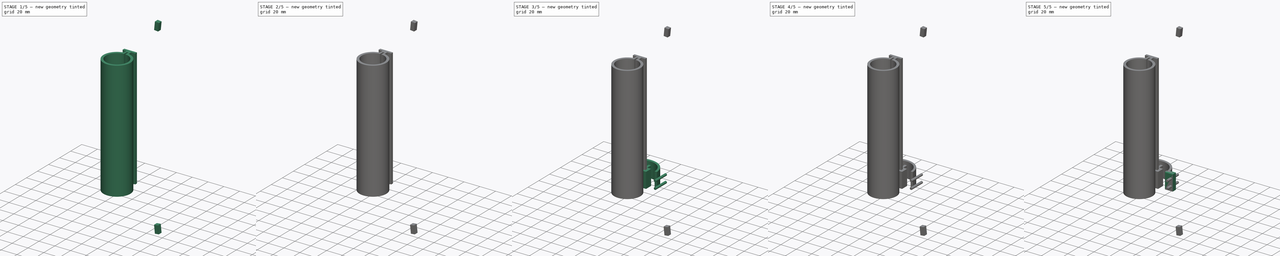
[diagram: build sequence overview — one tinted view per stage of 5, left to right]
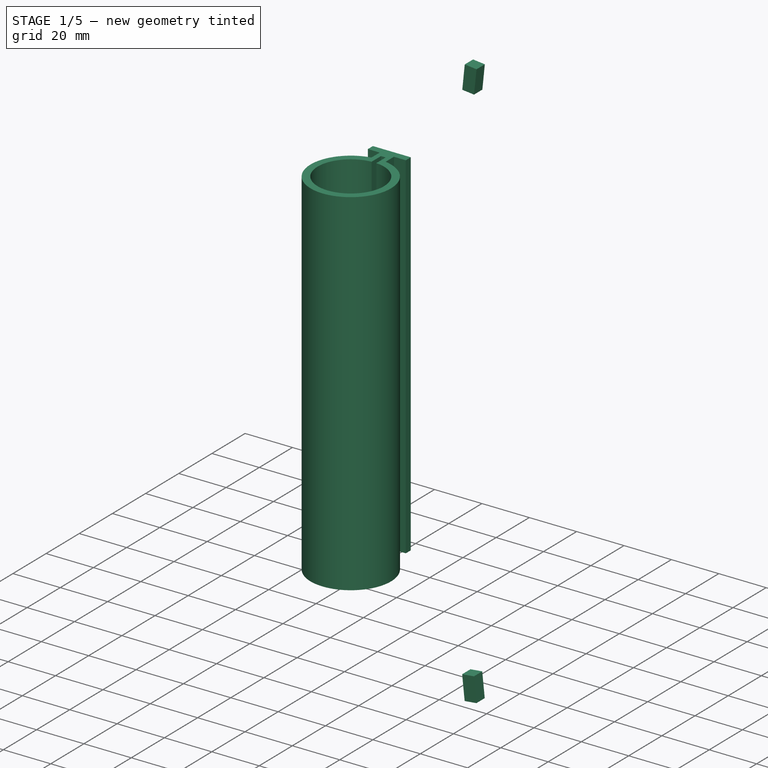
[diagram: stage 1 of 5 — iso view after this stage's code; geometry added in this stage tinted green]
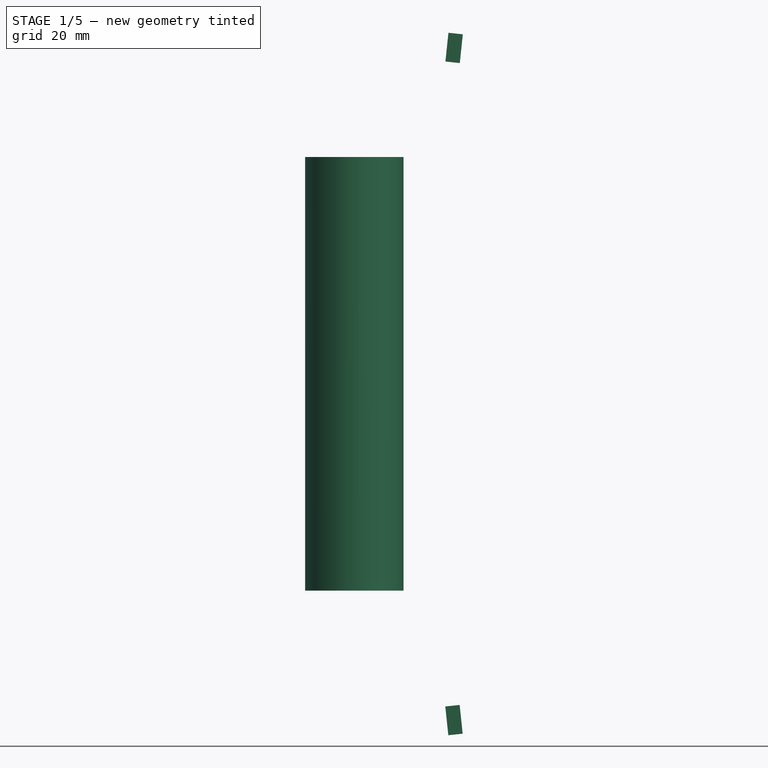
[diagram: stage 1 of 5 — front view after this stage's code; geometry added in this stage tinted green]
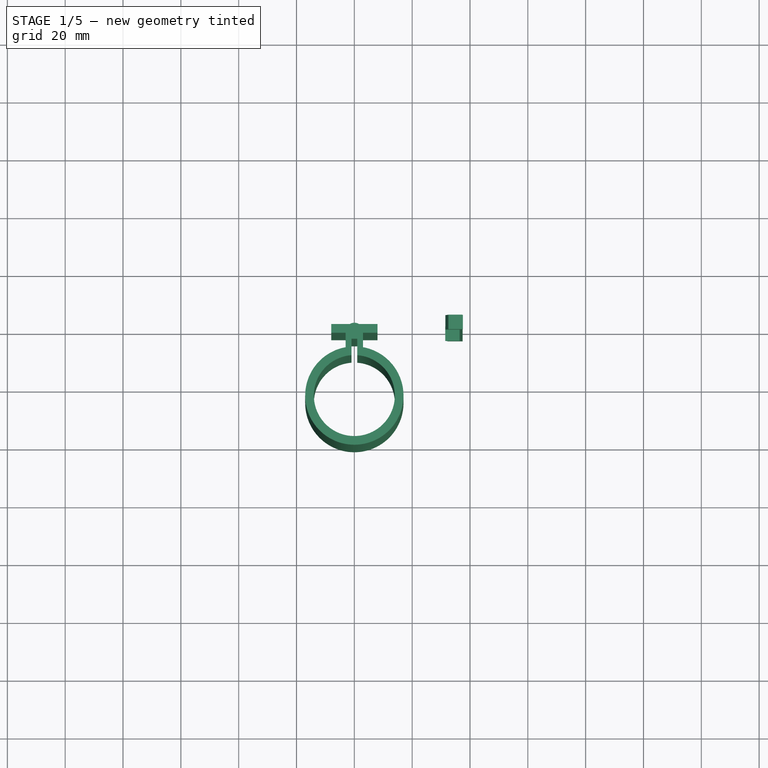
[diagram: stage 1 of 5 — top view after this stage's code; geometry added in this stage tinted green]
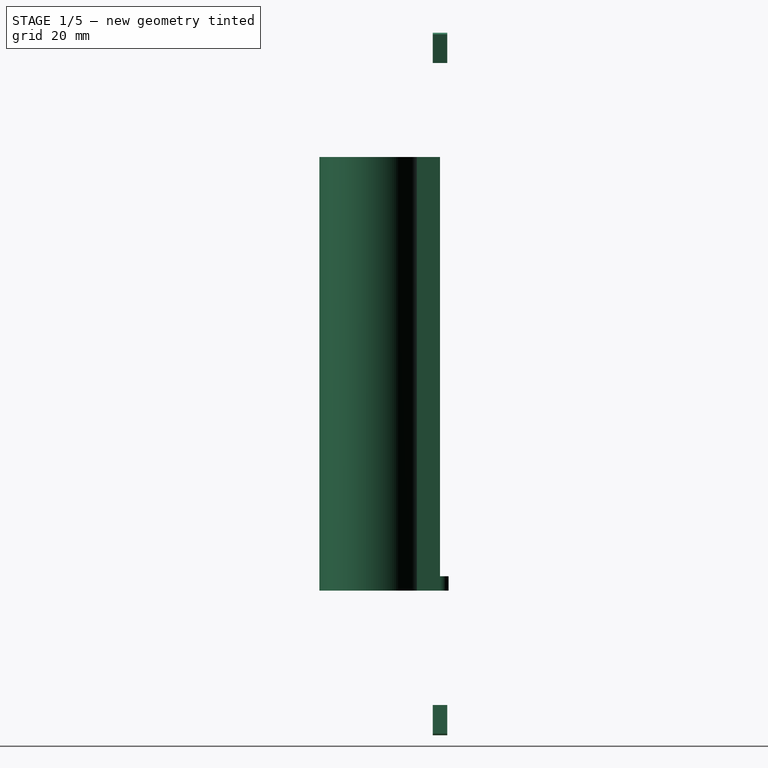
[diagram: stage 1 of 5 — right view after this stage's code; geometry added in this stage tinted green]
FCSTD DOCUMENT  (FreeCAD 0.17R13522 (Git))
Label: KuaiChaiDianYuan-jwei-1.0
License: All rights reserved
LicenseURL: http://en.wikipedia.org/wiki/All_rights_reserved
objects: Sketcher::SketchObject×24, PartDesign::Pad×14, PartDesign::Body×14, PartDesign::Pocket×10, Part::Box×6, Part::Cylinder×6, PartDesign::Fillet×2, PartDesign::LinearPattern×1
note: 101 computed .brp shape members not serialized (recipe doc carries the construction recipe); baked Part::Feature solids carry a one-line shape summary decoded from their .brp

FEATURE [Sketcher::SketchObject] Sketch012
  MapMode = 5
  Support = -> [XY_Plane002]
  sketch-geometry (8):
    g0: LineSegment StartX=-3 StartY=-3 StartZ=0 EndX=-8 EndY=-3 EndZ=0
    g1: LineSegment StartX=-8 StartY=-3 StartZ=0 EndX=-8 EndY=0 EndZ=0
    g2: LineSegment StartX=-8 StartY=0 StartZ=0 EndX=8 EndY=0 EndZ=0
    g3: LineSegment StartX=8 StartY=0 StartZ=0 EndX=8 EndY=-3 EndZ=0
    g4: LineSegment StartX=8 StartY=-3 StartZ=0 EndX=3 EndY=-3 EndZ=0
    g5: LineSegment StartX=3 StartY=-3 StartZ=0 EndX=3 EndY=-8 EndZ=0
    g6: LineSegment StartX=-3 StartY=-3 StartZ=0 EndX=-3 EndY=-8 EndZ=0
    g7: ArcOfCircle CenterX=0 CenterY=-24.7332 CenterZ=0 NormalX=0 NormalY=0 NormalZ=1 AngleXU=0 Radius=17 StartAngle=1.7482 EndAngle=7.67658
  constraints (25):
    c: Horizontal(g0)
    c: Coincident(g0,g1)
    c: Vertical(g1)
    c: Coincident(g1,g2)
    c: Horizontal(g2)
    c: Coincident(g2,g3)
    c: Coincident(g3,g4)
    c: Coincident(g4,g5)
    c: Vertical(g5)
    c: Coincident(g0,g6)
    c: Vertical(g6)
    c: Coincident(g7,g6)
    c: Coincident(g7,g5)
    c: Equal(g1,g3)
    c: Equal(g0,g4)
    c: Equal(g6,g5)
    c: Horizontal(g4)
    c: Vertical(g3)
    c: DistanceX(g2,g2) = 16
    c: DistanceY(g1,g1) = 3
    c: DistanceX(g4,g4) = 5
    c: DistanceY(g5,g5) = 5
    c: Radius(g7) = 17
    c: PointOnObject(g-1,g2)
    c: DistanceX(g1,g-1) = 8
FEATURE [PartDesign::Pad] Pad005
  Length = 150
  Length2 = 100
  Profile = -> Sketch012
  Type = 0
FEATURE [Sketcher::SketchObject] Sketch013
  ExternalGeometry = -> [Pad005]
  MapMode = 5
  Placement = pos=(0,0,150) rot=(0,0,1;0rad)
  Support = -> [Pad005]
  sketch-geometry (1):
    g0: Circle CenterX=0 CenterY=-24.7332 CenterZ=0 NormalX=0 NormalY=0 NormalZ=1 AngleXU=0 Radius=14
  constraints (2):
    c: Coincident(g0,g-3)
    c: Radius(g0) = 14
FEATURE [PartDesign::Pocket] Pocket005
  BaseFeature = -> Pad005
  Length = 140
  Length2 = 100
  Profile = -> Sketch013
  Type = 1
FEATURE [PartDesign::Body] Body011  label="固定孔5_2"
  Group = -> [Sketch024,Pad012]
  Origin = -> Origin011
  Placement = pos=(57.5,19.3,-37) rot=(0,0,1;0rad)
  Tip = -> Pad012
FEATURE [Sketcher::SketchObject] Sketch025
  MapMode = 5
  Support = -> [XY_Plane012]
  sketch-geometry (2):
    g0: Circle CenterX=0 CenterY=0 CenterZ=0 NormalX=0 NormalY=0 NormalZ=1 AngleXU=0 Radius=3
    g1: Circle CenterX=0 CenterY=0 CenterZ=0 NormalX=0 NormalY=0 NormalZ=1 AngleXU=0 Radius=1.5
  constraints (4):
    c: Radius(g0) = 3
    c: Coincident(g0,g1)
    c: Radius(g1) = 1.5
    c: Coincident(g0,g-1)
FEATURE [PartDesign::Pad] Pad013
  Length = 5
  Length2 = 100
  Profile = -> Sketch025
  Type = 0
FEATURE [PartDesign::Body] Body012  label="固定孔5_3"
  Group = -> [Sketch025,Pad013]
  Origin = -> Origin012
  Placement = pos=(57.5,-19.3,-37) rot=(0,0,1;0rad)
  Tip = -> Pad013
FEATURE [Sketcher::SketchObject] Sketch026
  MapMode = 5
  Support = -> [XY_Plane013]
  sketch-geometry (2):
    g0: Circle CenterX=0 CenterY=0 CenterZ=0 NormalX=0 NormalY=0 NormalZ=1 AngleXU=0 Radius=3
    g1: Circle CenterX=0 CenterY=0 CenterZ=0 NormalX=0 NormalY=0 NormalZ=1 AngleXU=0 Radius=1.5
  constraints (4):
    c: Radius(g0) = 3
    c: Coincident(g0,g1)
    c: Radius(g1) = 1.5
    c: Coincident(g0,g-1)
FEATURE [PartDesign::Pad] Pad014
  Length = 5
  Length2 = 100
  Profile = -> Sketch026
  Type = 0
FEATURE [PartDesign::Body] Body013  label="固定孔6_2"
  Group = -> [Sketch026,Pad014]
  Origin = -> Origin013
  Placement = pos=(57.5,19.3,180) rot=(0,0,1;0rad)
  Tip = -> Pad014
FEATURE [Sketcher::SketchObject] Sketch027
  MapMode = 5
  Support = -> [XY_Plane014]
  sketch-geometry (2):
    g0: Circle CenterX=0 CenterY=0 CenterZ=0 NormalX=0 NormalY=0 NormalZ=1 AngleXU=0 Radius=3
    g1: Circle CenterX=0 CenterY=0 CenterZ=0 NormalX=0 NormalY=0 NormalZ=1 AngleXU=0 Radius=1.5
  constraints (4):
    c: Radius(g0) = 3
    c: Coincident(g0,g1)
    c: Radius(g1) = 1.5
    c: Coincident(g0,g-1)
FEATURE [PartDesign::Pad] Pad015
  Length = 5
  Length2 = 100
  Profile = -> Sketch027
  Type = 0
FEATURE [PartDesign::Body] Body014  label="固定孔6_3"
  Group = -> [Sketch027,Pad015]
  Origin = -> Origin014
  Placement = pos=(57.5,-19.3,180) rot=(0,0,1;0rad)
  Tip = -> Pad015
FEATURE [Sketcher::SketchObject] Sketch028
  MapMode = 5
  Placement = pos=(0,0,0) rot=(1,0,0;3.14159rad)
  Support = -> [Pocket005]
  sketch-geometry (4):
    g0: LineSegment StartX=-1 StartY=15.1036 StartZ=0 EndX=1 EndY=15.1036 EndZ=0
    g1: LineSegment StartX=1 StartY=15.1036 StartZ=0 EndX=1 EndY=5.10358 EndZ=0
    g2: LineSegment StartX=1 StartY=5.10358 StartZ=0 EndX=-1 EndY=5.10358 EndZ=0
    g3: LineSegment StartX=-1 StartY=5.10358 StartZ=0 EndX=-1 EndY=15.1036 EndZ=0
  constraints (11):
    c: Coincident(g0,g1)
    c: Coincident(g1,g2)
    c: Coincident(g2,g3)
    c: Coincident(g3,g0)
    c: Horizontal(g0)
    c: Horizontal(g2)
    c: Vertical(g1)
    c: Vertical(g3)
    c: DistanceX(g0,g0) = 2
    c: DistanceY(g3,g3) = 10
    c: DistanceX(g-1,g0) = 1
FEATURE [PartDesign::Pocket] Pocket010
  BaseFeature = -> Pocket005
  Length = 5
  Length2 = 100
  Profile = -> Sketch028
  Type = 1
FEATURE [PartDesign::Body] Body002  label="电池仓3_1"
  Group = -> [Sketch012,Pad005,Sketch013,Pocket005,Sketch028,Pocket010]
  Origin = -> Origin002
  Placement = pos=(32.5,0,0) rot=(0,0,1;1.5708rad)
  Tip = -> Pocket010
FEATURE [Part::Box] Box005  label="立方体5_4"
  AttacherType = Attacher::AttachEngine3D
  Height = 10
  Length = 5
  Placement = pos=(32.5,-2.5,-50) rot=(0,-1,0;0.10472rad)
  Width = 5
FEATURE [Part::Box] Box006  label="立方体6_4"
  AttacherType = Attacher::AttachEngine3D
  Height = 10
  Length = 5
  Placement = pos=(31.5,-2.5,183) rot=(0,1,0;0.10472rad)
  Width = 5
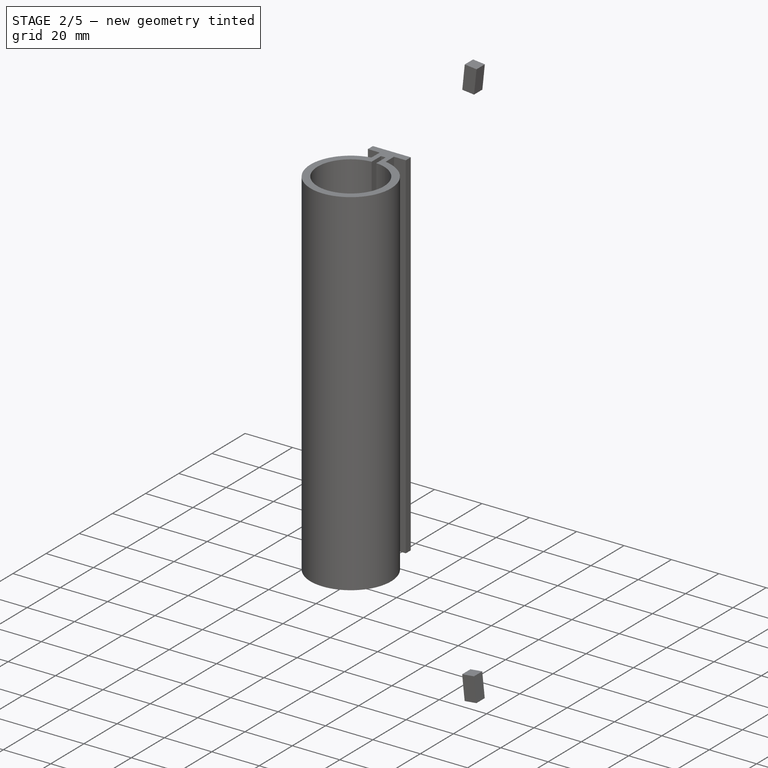
[diagram: stage 2 of 5 — iso view after this stage's code; geometry added in this stage tinted green]
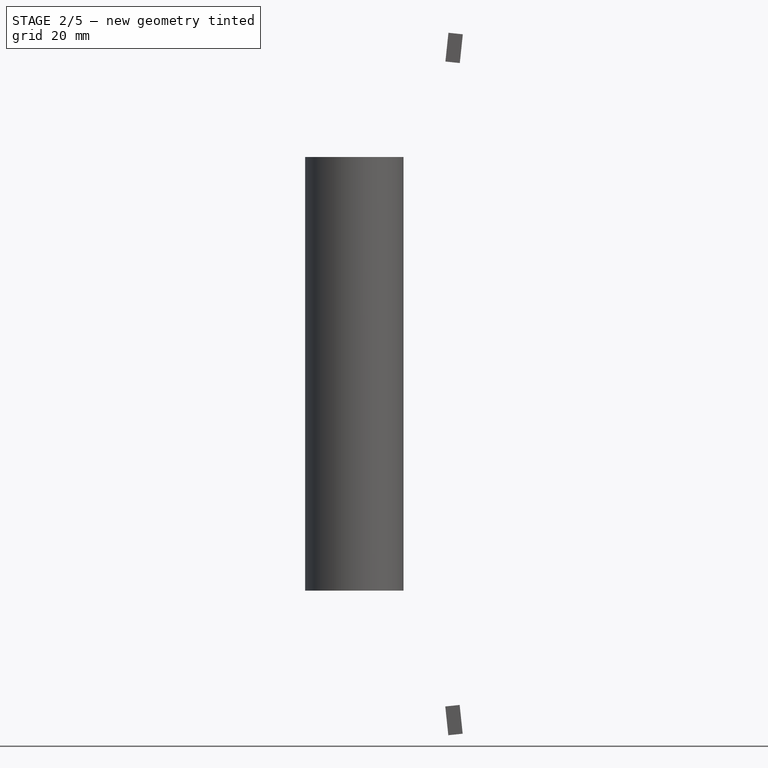
[diagram: stage 2 of 5 — front view after this stage's code; geometry added in this stage tinted green]
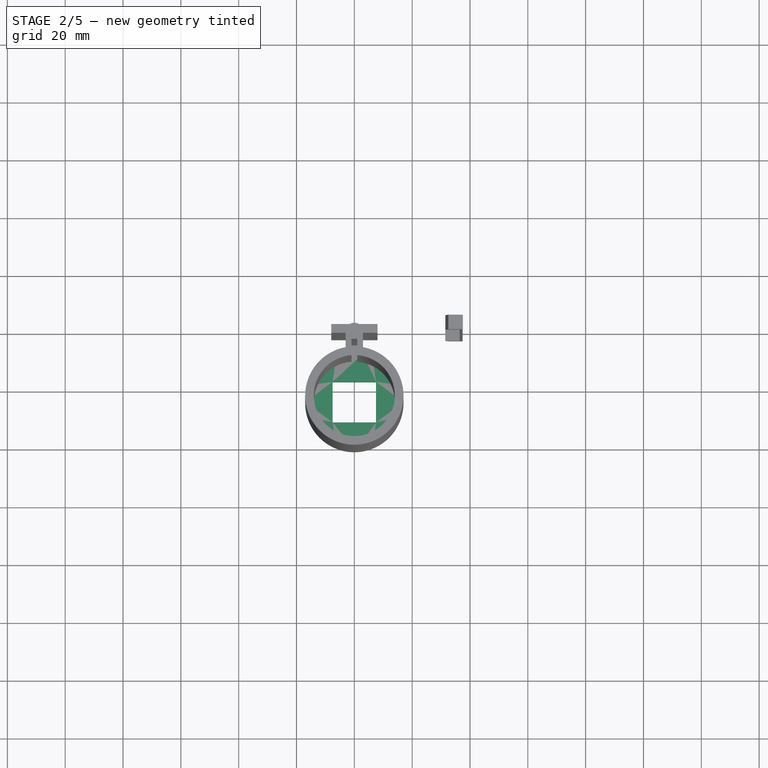
[diagram: stage 2 of 5 — top view after this stage's code; geometry added in this stage tinted green]
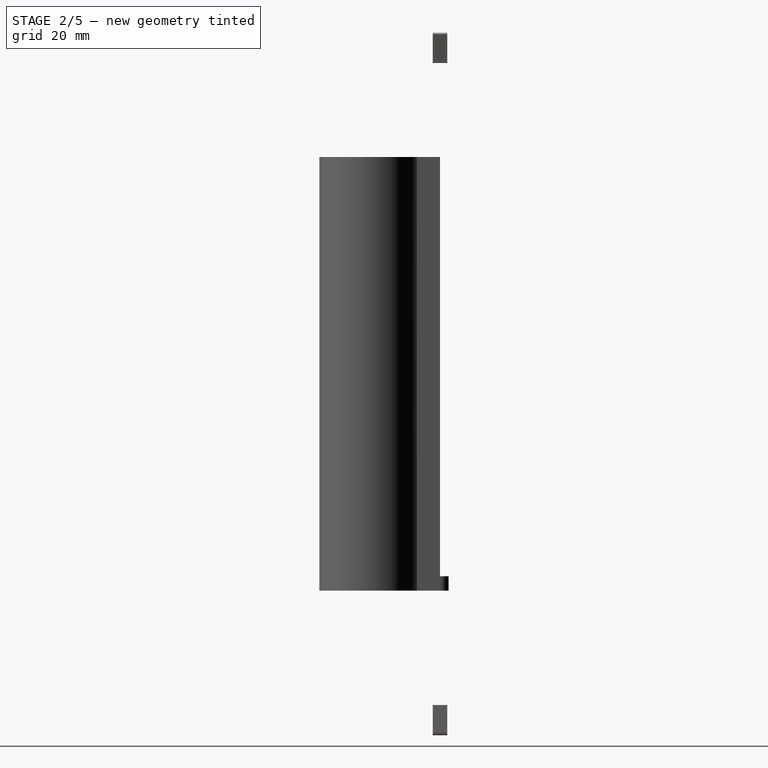
[diagram: stage 2 of 5 — right view after this stage's code; geometry added in this stage tinted green]
FEATURE [PartDesign::Body] Body005  label="USB5_1"
  Group = -> [Sketch014,Pad006,Sketch015,Pocket006,Sketch016,Pocket007]
  Origin = -> Origin005
  Placement = pos=(32.5,0,-60) rot=(0,0,1;1.5708rad)
  Tip = -> Pocket007
FEATURE [Sketcher::SketchObject] Sketch017
  MapMode = 5
  Support = -> [XY_Plane006]
  sketch-geometry (8):
    g0: LineSegment StartX=-3 StartY=-3 StartZ=0 EndX=-8 EndY=-3 EndZ=0
    g1: LineSegment StartX=-8 StartY=-3 StartZ=0 EndX=-8 EndY=0 EndZ=0
    g2: LineSegment StartX=-8 StartY=0 StartZ=0 EndX=8 EndY=0 EndZ=0
    g3: LineSegment StartX=8 StartY=0 StartZ=0 EndX=8 EndY=-3 EndZ=0
    g4: LineSegment StartX=8 StartY=-3 StartZ=0 EndX=3 EndY=-3 EndZ=0
    g5: LineSegment StartX=3 StartY=-3 StartZ=0 EndX=3 EndY=-8 EndZ=0
    g6: LineSegment StartX=-3 StartY=-3 StartZ=0 EndX=-3 EndY=-8 EndZ=0
    g7: ArcOfCircle CenterX=0 CenterY=-24.7332 CenterZ=0 NormalX=0 NormalY=0 NormalZ=1 AngleXU=0 Radius=17 StartAngle=1.7482 EndAngle=7.67658
  constraints (25):
    c: Horizontal(g0)
    c: Coincident(g0,g1)
    c: Vertical(g1)
    c: Coincident(g1,g2)
    c: Horizontal(g2)
    c: Coincident(g2,g3)
    c: Coincident(g3,g4)
    c: Coincident(g4,g5)
    c: Vertical(g5)
    c: Coincident(g0,g6)
    c: Vertical(g6)
    c: Coincident(g7,g6)
    c: Coincident(g7,g5)
    c: Equal(g1,g3)
    c: Equal(g0,g4)
    c: Equal(g6,g5)
    c: Horizontal(g4)
    c: Vertical(g3)
    c: DistanceX(g2,g2) = 16
    c: DistanceY(g1,g1) = 3
    c: DistanceX(g4,g4) = 5
    c: DistanceY(g5,g5) = 5
    c: Radius(g7) = 17
    c: PointOnObject(g-1,g2)
    c: DistanceX(g1,g-1) = 8
FEATURE [PartDesign::Pad] Pad007
  Length = 20
  Length2 = 100
  Profile = -> Sketch017
  Type = 0
FEATURE [Sketcher::SketchObject] Sketch018
  ExternalGeometry = -> [Pad007]
  MapMode = 5
  Placement = pos=(0,0,20) rot=(0,0,1;0rad)
  Support = -> [Pad007]
  sketch-geometry (4):
    g0: LineSegment StartX=-7.5 StartY=-17.7332 StartZ=0 EndX=7.5 EndY=-17.7332 EndZ=0
    g1: LineSegment StartX=7.5 StartY=-17.7332 StartZ=0 EndX=7.5 EndY=-31.7332 EndZ=0
    g2: LineSegment StartX=7.5 StartY=-31.7332 StartZ=0 EndX=-7.5 EndY=-31.7332 EndZ=0
    g3: LineSegment StartX=-7.5 StartY=-31.7332 StartZ=0 EndX=-7.5 EndY=-17.7332 EndZ=0
  constraints (12):
    c: Coincident(g0,g1)
    c: Coincident(g1,g2)
    c: Coincident(g2,g3)
    c: Coincident(g3,g0)
    c: Horizontal(g0)
    c: Horizontal(g2)
    c: Vertical(g1)
    c: Vertical(g3)
    c: DistanceX(g0,g0) = 15
    c: DistanceY(g3,g3) = 14
    c: DistanceX(g0,g-1) = 7.5
    c: DistanceY(g-3,g0) = 7
FEATURE [PartDesign::Pocket] Pocket008
  BaseFeature = -> Pad007
  Length = 5
  Length2 = 100
  Profile = -> Sketch018
  Type = 1
FEATURE [Sketcher::SketchObject] Sketch019
  AttachmentOffset = pos=(0,0,-10) rot=(0,0,1;0rad)
  ExternalGeometry = -> [Pocket008]
  MapMode = 5
  Placement = pos=(0,0,10) rot=(0,0,1;0rad)
  Support = -> [Pocket008]
  sketch-geometry (4):
    g0: LineSegment StartX=-10 StartY=-14.7332 StartZ=0 EndX=10 EndY=-14.7332 EndZ=0
    g1: LineSegment StartX=10 StartY=-14.7332 StartZ=0 EndX=10 EndY=-34.7332 EndZ=0
    g2: LineSegment StartX=10 StartY=-34.7332 StartZ=0 EndX=-10 EndY=-34.7332 EndZ=0
    g3: LineSegment StartX=-10 StartY=-34.7332 StartZ=0 EndX=-10 EndY=-14.7332 EndZ=0
  constraints (12):
    c: Coincident(g0,g1)
    c: Coincident(g1,g2)
    c: Coincident(g2,g3)
    c: Coincident(g3,g0)
    c: Horizontal(g0)
    c: Horizontal(g2)
    c: Vertical(g1)
    c: Vertical(g3)
    c: DistanceX(g0,g0) = 20
    c: DistanceY(g3,g3) = 20
    c: DistanceX(g0,g-1) = 10
    c: DistanceY(g-3,g0) = 10
FEATURE [PartDesign::Pocket] Pocket009
  BaseFeature = -> Pocket008
  Length = 5
  Length2 = 100
  Profile = -> Sketch019
  Type = 1
FEATURE [PartDesign::Body] Body006  label="USB6_2"
  Group = -> [Sketch017,Pad007,Sketch018,Pocket008,Sketch019,Pocket009]
  Origin = -> Origin006
  Placement = pos=(32.5,0,180) rot=(0,0,1;1.5708rad)
  Tip = -> Pocket009
FEATURE [Sketcher::SketchObject] Sketch020
  MapMode = 5
  Support = -> [XY_Plane007]
  sketch-geometry (2):
    g0: Circle CenterX=0 CenterY=0 CenterZ=0 NormalX=0 NormalY=0 NormalZ=1 AngleXU=0 Radius=3
    g1: Circle CenterX=0 CenterY=0 CenterZ=0 NormalX=0 NormalY=0 NormalZ=1 AngleXU=0 Radius=1.5
  constraints (4):
    c: Radius(g0) = 3
    c: Coincident(g0,g1)
    c: Radius(g1) = 1.5
    c: Coincident(g0,g-1)
FEATURE [PartDesign::Pad] Pad008
  Length = 5
  Length2 = 100
  Profile = -> Sketch020
  Type = 0
FEATURE [PartDesign::Body] Body007  label="固定孔3_2"
  Group = -> [Sketch020,Pad008]
  Origin = -> Origin007
  Placement = pos=(57.5,19.3,0) rot=(0,0,1;0rad)
  Tip = -> Pad008
FEATURE [Sketcher::SketchObject] Sketch021
  MapMode = 5
  Support = -> [XY_Plane008]
  sketch-geometry (2):
    g0: Circle CenterX=0 CenterY=0 CenterZ=0 NormalX=0 NormalY=0 NormalZ=1 AngleXU=0 Radius=3
    g1: Circle CenterX=0 CenterY=0 CenterZ=0 NormalX=0 NormalY=0 NormalZ=1 AngleXU=0 Radius=1.5
  constraints (4):
    c: Radius(g0) = 3
    c: Coincident(g0,g1)
    c: Radius(g1) = 1.5
    c: Coincident(g0,g-1)
FEATURE [PartDesign::Pad] Pad009
  Length = 5
  Length2 = 100
  Profile = -> Sketch021
  Type = 0
FEATURE [PartDesign::Body] Body008  label="固定孔3_3"
  Group = -> [Sketch021,Pad009]
  Origin = -> Origin008
  Placement = pos=(57.5,-19.3,0) rot=(0,0,1;0rad)
  Tip = -> Pad009
FEATURE [Sketcher::SketchObject] Sketch022
  MapMode = 5
  Support = -> [XY_Plane009]
  sketch-geometry (2):
    g0: Circle CenterX=0 CenterY=0 CenterZ=0 NormalX=0 NormalY=0 NormalZ=1 AngleXU=0 Radius=3
    g1: Circle CenterX=0 CenterY=0 CenterZ=0 NormalX=0 NormalY=0 NormalZ=1 AngleXU=0 Radius=1.5
  constraints (4):
    c: Radius(g0) = 3
    c: Coincident(g0,g1)
    c: Radius(g1) = 1.5
    c: Coincident(g0,g-1)
FEATURE [PartDesign::Pad] Pad010
  Length = 5
  Length2 = 100
  Profile = -> Sketch022
  Type = 0
FEATURE [PartDesign::Body] Body009  label="固定孔3_4"
  Group = -> [Sketch022,Pad010]
  Origin = -> Origin009
  Placement = pos=(57.5,19.3,145) rot=(0,0,1;0rad)
  Tip = -> Pad010
FEATURE [Sketcher::SketchObject] Sketch023
  MapMode = 5
  Support = -> [XY_Plane010]
  sketch-geometry (2):
    g0: Circle CenterX=0 CenterY=0 CenterZ=0 NormalX=0 NormalY=0 NormalZ=1 AngleXU=0 Radius=3
    g1: Circle CenterX=0 CenterY=0 CenterZ=0 NormalX=0 NormalY=0 NormalZ=1 AngleXU=0 Radius=1.5
  constraints (4):
    c: Radius(g0) = 3
    c: Coincident(g0,g1)
    c: Radius(g1) = 1.5
    c: Coincident(g0,g-1)
FEATURE [PartDesign::Pad] Pad011
  Length = 5
  Length2 = 100
  Profile = -> Sketch023
  Type = 0
FEATURE [PartDesign::Body] Body010  label="固定孔3_5"
  Group = -> [Sketch023,Pad011]
  Origin = -> Origin010
  Placement = pos=(57.5,-19.3,145) rot=(0,0,1;0rad)
  Tip = -> Pad011
FEATURE [Sketcher::SketchObject] Sketch024
  MapMode = 5
  Support = -> [XY_Plane011]
  sketch-geometry (2):
    g0: Circle CenterX=0 CenterY=0 CenterZ=0 NormalX=0 NormalY=0 NormalZ=1 AngleXU=0 Radius=3
    g1: Circle CenterX=0 CenterY=0 CenterZ=0 NormalX=0 NormalY=0 NormalZ=1 AngleXU=0 Radius=1.5
  constraints (4):
    c: Radius(g0) = 3
    c: Coincident(g0,g1)
    c: Radius(g1) = 1.5
    c: Coincident(g0,g-1)
FEATURE [PartDesign::Pad] Pad012
  Length = 5
  Length2 = 100
  Profile = -> Sketch024
  Type = 0
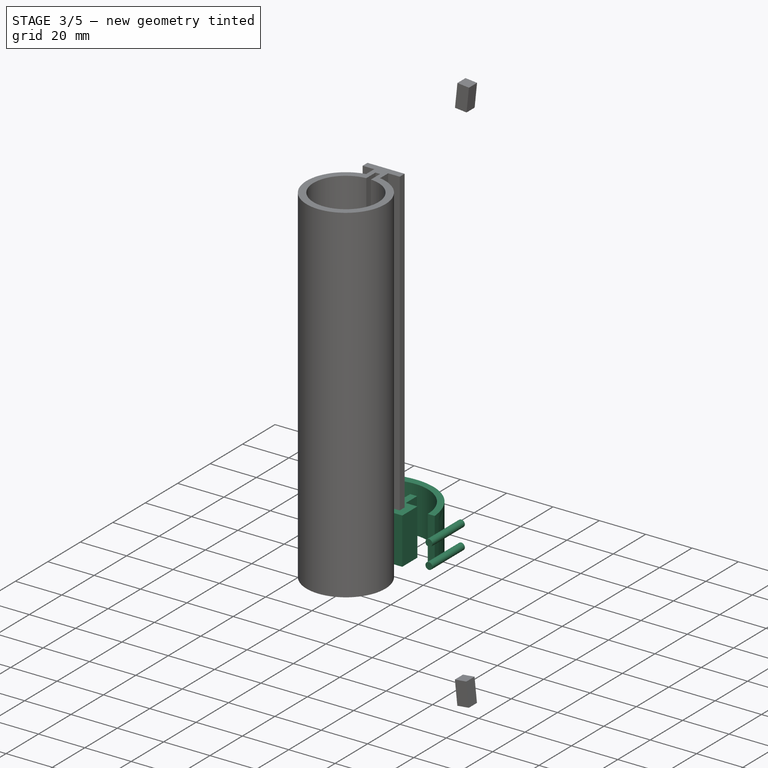
[diagram: stage 3 of 5 — iso view after this stage's code; geometry added in this stage tinted green]
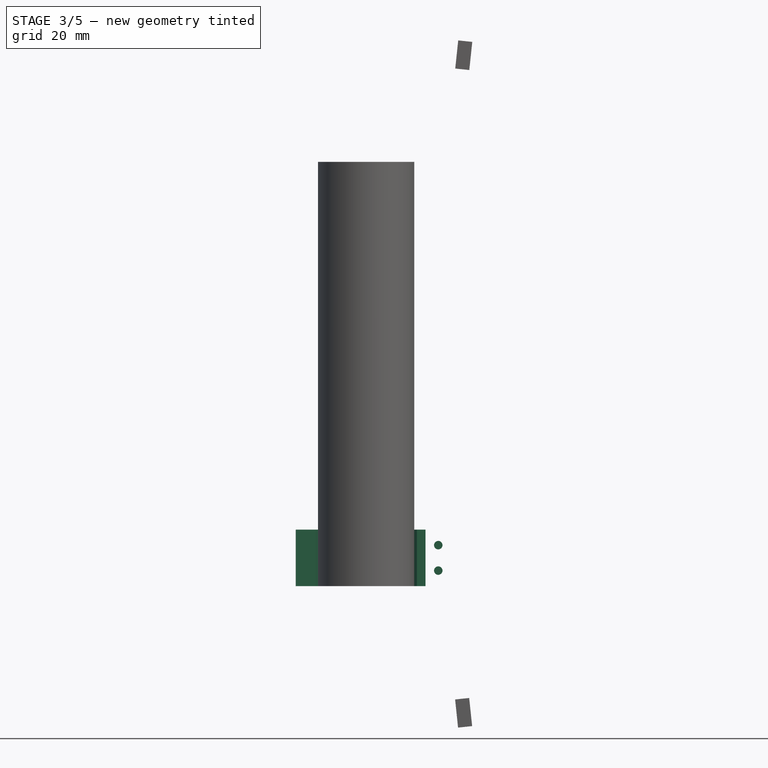
[diagram: stage 3 of 5 — front view after this stage's code; geometry added in this stage tinted green]
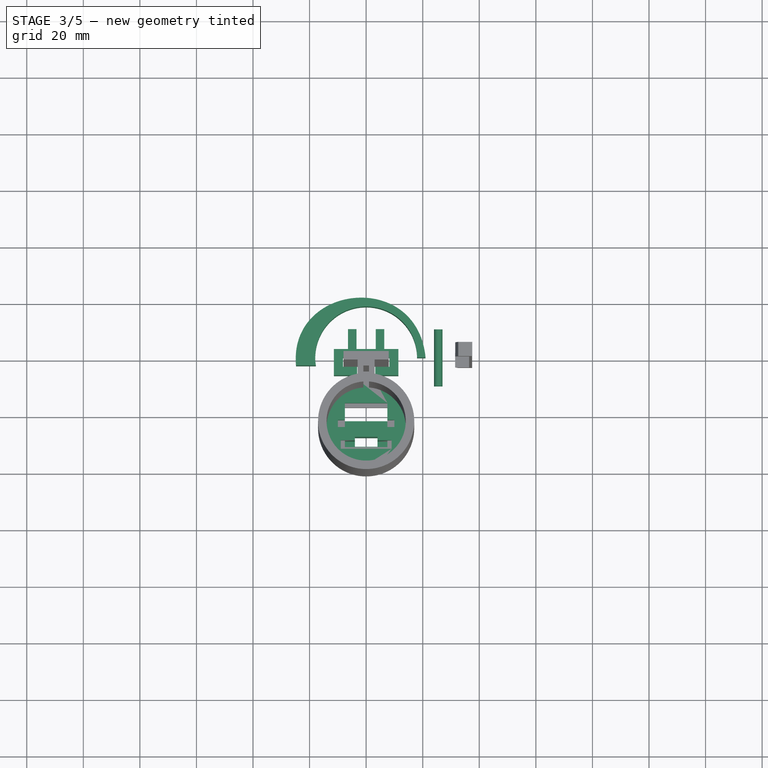
[diagram: stage 3 of 5 — top view after this stage's code; geometry added in this stage tinted green]
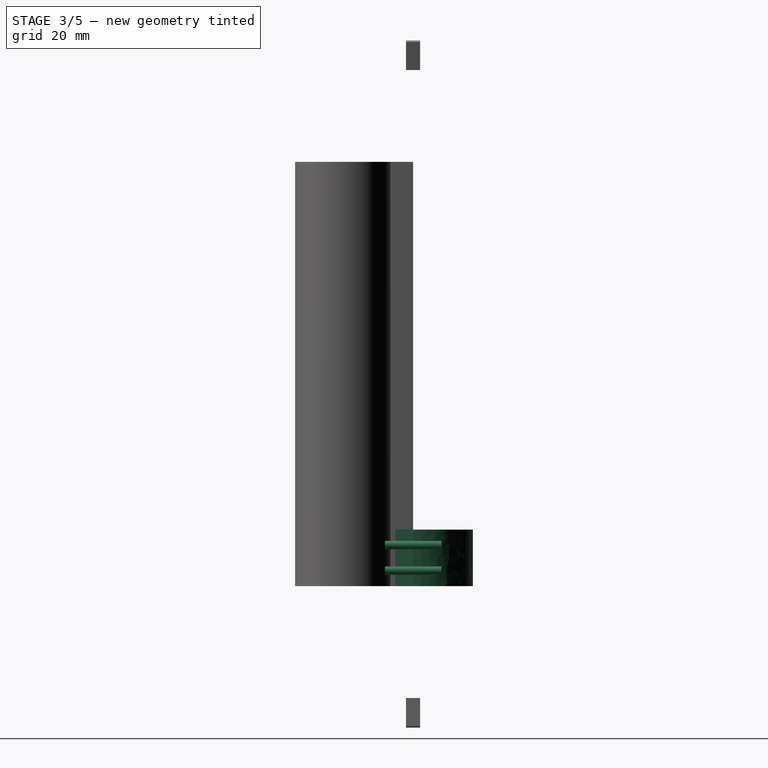
[diagram: stage 3 of 5 — right view after this stage's code; geometry added in this stage tinted green]
FEATURE [Sketcher::SketchObject] Sketch
  MapMode = 5
  Support = -> [XY_Plane]
  sketch-geometry (10):
    g0: LineSegment StartX=18 StartY=0 StartZ=0 EndX=21 EndY=0 EndZ=0
    g1: ArcOfCircle CenterX=0 CenterY=0 CenterZ=0 NormalX=0 NormalY=0 NormalZ=1 AngleXU=0 Radius=18 StartAngle=0 EndAngle=3.29778
    g2-g5: Circle [constr] x4 (B-spline internal-alignment scaffolding for g6; pole/knot coordinates omitted)
    g6: BSplineCurve PolesCount=4 KnotsCount=2 Degree=3 IsPeriodic=0
    g7: GeomPoint [constr] X=21 Y=0 Z=0
    g8: GeomPoint [constr] X=-24.7809 Y=-2.8 Z=0
    g9: LineSegment StartX=-24.7809 StartY=-2.8 StartZ=0 EndX=-17.7809 EndY=-2.8 EndZ=0
  constraints (18):
    c: Horizontal(g0)
    c: Coincident(g1,g-1)
    c: Coincident(g1,g0)
    c: Radius(g1) = 18
    c: Radius(g2) = 3
    c: Equal(g2,g3)
    c: Equal(g2,g4)
    c: Equal(g2,g5)
    c: InternalAlignment(g2-g5 -> g6) x4
    c: InternalAlignment(g7,g6)
    c: InternalAlignment(g8,g6)
    c: PointOnObject(g0,g-1)
    c: Coincident(g0,g2)
    c: DistanceY(g1,g-1) = 2.8
    c: DistanceX(g5,g1) = 7
    c: Coincident(g9,g1)
    c: Horizontal(g9)
    c: Coincident(g5,g9)
FEATURE [PartDesign::Pad] Pad
  Length = 20
  Length2 = 100
  Profile = -> Sketch
  Type = 0
FEATURE [PartDesign::Body] Body  label="车梁卡扣1_1"
  Group = -> [Sketch,Pad,Sketch005,Pocket,Sketch008,Pocket002,Fillet002]
  Origin = -> Origin
  Tip = -> Fillet002
FEATURE [Sketcher::SketchObject] Sketch011
  MapMode = 5
  Support = -> [XY_Plane004]
  sketch-geometry (20):
    g0: LineSegment StartX=-6.4 StartY=3 StartZ=0 EndX=-6.4 EndY=10 EndZ=0
    g1: LineSegment StartX=-6.4 StartY=10 StartZ=0 EndX=-3.4 EndY=10 EndZ=0
    g2: LineSegment StartX=-3.4 StartY=10 StartZ=0 EndX=-3.4 EndY=3 EndZ=0
    g3: LineSegment StartX=6.4 StartY=10 StartZ=0 EndX=3.4 EndY=10 EndZ=0
    g4: LineSegment StartX=3.4 StartY=10 StartZ=0 EndX=3.4 EndY=3 EndZ=0
    g5: LineSegment StartX=11.4 StartY=3 StartZ=0 EndX=11.4 EndY=-6.3 EndZ=0
    g6: LineSegment StartX=11.4 StartY=-6.3 StartZ=0 EndX=3.2 EndY=-6.3 EndZ=0
    g7: LineSegment StartX=3.2 StartY=-6.3 StartZ=0 EndX=3.2 EndY=-3.3 EndZ=0
    g8: LineSegment StartX=3.2 StartY=-3.3 StartZ=0 EndX=8.2 EndY=-3.3 EndZ=0
    g9: LineSegment StartX=8.2 StartY=-3.3 StartZ=0 EndX=8.2 EndY=0 EndZ=0
    g10: LineSegment StartX=8.2 StartY=0 StartZ=0 EndX=-8.2 EndY=0 EndZ=0
    g11: LineSegment StartX=-8.2 StartY=0 StartZ=0 EndX=-8.2 EndY=-3.3 EndZ=0
    g12: LineSegment StartX=-8.2 StartY=-3.3 StartZ=0 EndX=-3.2 EndY=-3.3 EndZ=0
    g13: LineSegment StartX=-3.2 StartY=-3.3 StartZ=0 EndX=-3.2 EndY=-6.3 EndZ=0
    g14: LineSegment StartX=-3.2 StartY=-6.3 StartZ=0 EndX=-11.4 EndY=-6.3 EndZ=0
    g15: LineSegment StartX=-11.4 StartY=-6.3 StartZ=0 EndX=-11.4 EndY=3 EndZ=0
    g16: LineSegment StartX=-11.4 StartY=3 StartZ=0 EndX=-6.4 EndY=3 EndZ=0
    g17: LineSegment StartX=-3.4 StartY=3 StartZ=0 EndX=3.4 EndY=3 EndZ=0
    g18: LineSegment StartX=11.4 StartY=3 StartZ=0 EndX=6.4 EndY=3 EndZ=0
    g19: LineSegment StartX=6.4 StartY=10 StartZ=0 EndX=6.4 EndY=3 EndZ=0
  constraints (60):
    c: Vertical(g0)
    c: Coincident(g0,g1)
    c: Coincident(g1,g2)
    c: Vertical(g2)
    c: Coincident(g3,g4)
    c: Coincident(g5,g6)
    c: Horizontal(g6)
    c: Coincident(g6,g7)
    c: Vertical(g7)
    c: Coincident(g7,g8)
    c: Horizontal(g8)
    c: Coincident(g8,g9)
    c: Coincident(g9,g10)
    c: Horizontal(g10)
    c: Coincident(g10,g11)
    c: Vertical(g11)
    c: Coincident(g11,g12)
    c: Horizontal(g12)
    c: Coincident(g12,g13)
    c: Coincident(g13,g14)
    c: Coincident(g14,g15)
    c: Vertical(g15)
    c: Coincident(g15,g16)
    c: Coincident(g16,g0)
    c: Vertical(g5)
    c: Vertical(g9)
    c: Vertical(g4)
    c: Vertical(g13)
    c: Horizontal(g14)
    c: Horizontal(g1)
    c: Horizontal(g3)
    c: Horizontal(g16)
    c: DistanceY(g0,g0) = 7
    c: DistanceX(g1,g1) = 3
    c: DistanceX(g16,g16) = 5
    c: DistanceY(g13,g13) = 3
    c: DistanceY(g11,g11) = 3.3
    c: Coincident(g17,g2)
    c: Coincident(g17,g4)
    c: Horizontal(g17)
    c: Coincident(g18,g5)
    c: Horizontal(g18)
    c: Coincident(g19,g3)
    c: Coincident(g19,g18)
    c: Vertical(g19)
    c: DistanceX(g17,g17) = 6.8
    c: DistanceX(g8,g8) = 5
    c: PointOnObject(g-1,g10)
    c: DistanceX(g10,g10) = 16.4
    c: DistanceX(g2,g-1) = 3.4
    c: Equal(g9,g11)
    c: Equal(g6,g14)
    c: DistanceX(g10,g-1) = 8.2
    c: Equal(g7,g13)
    c: DistanceY(g-1,g15) = 3
    c: Equal(g0,g2)
    c: Equal(g2,g4)
    c: Equal(g4,g19)
    c: Equal(g3,g1)
    c: DistanceX(g12,g12) = 5
FEATURE [PartDesign::Pad] Pad004
  Length = 20
  Length2 = 100
  Profile = -> Sketch011
  Type = 0
FEATURE [PartDesign::Body] Body004  label="衔接4_1"
  Group = -> [Sketch011,Pad004]
  Origin = -> Origin004
  Placement = pos=(32,0,0) rot=(0,0,1;1.5708rad)
  Tip = -> Pad004
FEATURE [Part::Cylinder] Cylinder004  label="螺孔4_2"
  Angle = 360
  AttacherType = Attacher::AttachEngine3D
  Height = 20
  Placement = pos=(25.5,10,5.5) rot=(1,0,0;1.5708rad)
  Radius = 1.5
FEATURE [Part::Cylinder] Cylinder005  label="螺孔4_3"
  Angle = 360
  AttacherType = Attacher::AttachEngine3D
  Height = 20
  Placement = pos=(25.5,10,14.5) rot=(1,0,0;1.5708rad)
  Radius = 1.5
FEATURE [Sketcher::SketchObject] Sketch014
  MapMode = 5
  Support = -> [XY_Plane005]
  sketch-geometry (8):
    g0: LineSegment StartX=-3 StartY=-3 StartZ=0 EndX=-8 EndY=-3 EndZ=0
    g1: LineSegment StartX=-8 StartY=-3 StartZ=0 EndX=-8 EndY=0 EndZ=0
    g2: LineSegment StartX=-8 StartY=0 StartZ=0 EndX=8 EndY=0 EndZ=0
    g3: LineSegment StartX=8 StartY=0 StartZ=0 EndX=8 EndY=-3 EndZ=0
    g4: LineSegment StartX=8 StartY=-3 StartZ=0 EndX=3 EndY=-3 EndZ=0
    g5: LineSegment StartX=3 StartY=-3 StartZ=0 EndX=3 EndY=-8 EndZ=0
    g6: LineSegment StartX=-3 StartY=-3 StartZ=0 EndX=-3 EndY=-8 EndZ=0
    g7: ArcOfCircle CenterX=0 CenterY=-24.7332 CenterZ=0 NormalX=0 NormalY=0 NormalZ=1 AngleXU=0 Radius=17 StartAngle=1.7482 EndAngle=7.67658
  constraints (25):
    c: Horizontal(g0)
    c: Coincident(g0,g1)
    c: Vertical(g1)
    c: Coincident(g1,g2)
    c: Horizontal(g2)
    c: Coincident(g2,g3)
    c: Coincident(g3,g4)
    c: Coincident(g4,g5)
    c: Vertical(g5)
    c: Coincident(g0,g6)
    c: Vertical(g6)
    c: Coincident(g7,g6)
    c: Coincident(g7,g5)
    c: Equal(g1,g3)
    c: Equal(g0,g4)
    c: Equal(g6,g5)
    c: Horizontal(g4)
    c: Vertical(g3)
    c: DistanceX(g2,g2) = 16
    c: DistanceY(g1,g1) = 3
    c: DistanceX(g4,g4) = 5
    c: DistanceY(g5,g5) = 5
    c: Radius(g7) = 17
    c: PointOnObject(g-1,g2)
    c: DistanceX(g1,g-1) = 8
FEATURE [PartDesign::Pad] Pad006
  Length = 28
  Length2 = 100
  Profile = -> Sketch014
  Type = 0
FEATURE [Sketcher::SketchObject] Sketch015
  ExternalGeometry = -> [Pad006]
  MapMode = 5
  Placement = pos=(0,0,0) rot=(1,0,0;3.14159rad)
  Support = -> [Pad006]
  sketch-geometry (8):
    g0: LineSegment StartX=-4 StartY=31.2332 StartZ=0 EndX=4 EndY=31.2332 EndZ=0
    g1: LineSegment StartX=4 StartY=31.2332 StartZ=0 EndX=4 EndY=28.2332 EndZ=0
    g2: LineSegment StartX=4 StartY=28.2332 StartZ=0 EndX=-4 EndY=28.2332 EndZ=0
    g3: LineSegment StartX=-4 StartY=28.2332 StartZ=0 EndX=-4 EndY=31.2332 EndZ=0
    g4: LineSegment StartX=-7.5 StartY=22.2332 StartZ=0 EndX=7.5 EndY=22.2332 EndZ=0
    g5: LineSegment StartX=7.5 StartY=22.2332 StartZ=0 EndX=7.5 EndY=16.2332 EndZ=0
    g6: LineSegment StartX=7.5 StartY=16.2332 StartZ=0 EndX=-7.5 EndY=16.2332 EndZ=0
    g7: LineSegment StartX=-7.5 StartY=16.2332 StartZ=0 EndX=-7.5 EndY=22.2332 EndZ=0
  constraints (24):
    c: Coincident(g0,g1)
    c: Coincident(g1,g2)
    c: Coincident(g2,g3)
    c: Coincident(g3,g0)
    c: Horizontal(g0)
    c: Horizontal(g2)
    c: Vertical(g1)
    c: Vertical(g3)
    c: DistanceX(g0,g0) = 8
    c: DistanceY(g3,g3) = 3
    c: DistanceX(g0,g-1) = 4
    c: Coincident(g4,g5)
    c: Coincident(g5,g6)
    c: Coincident(g6,g7)
    c: Coincident(g7,g4)
    c: Horizontal(g4)
    c: Horizontal(g6)
    c: Vertical(g5)
    c: Vertical(g7)
    c: DistanceX(g4,g4) = 15
    c: DistanceY(g7,g7) = 6
    c: DistanceX(g4,g-1) = 7.5
    c: Distance(g2,g4) = 6
    c: Distance(g-3,g4) = 2.5
FEATURE [PartDesign::Pocket] Pocket006
  BaseFeature = -> Pad006
  Length = 5
  Length2 = 100
  Profile = -> Sketch015
  Type = 1
FEATURE [Sketcher::SketchObject] Sketch016
  AttachmentOffset = pos=(0,0,-1) rot=(0,0,1;0rad)
  ExternalGeometry = -> [Pocket006]
  MapMode = 5
  Placement = pos=(0,0,1) rot=(1,0,0;3.14159rad)
  Support = -> [Pocket006]
  sketch-geometry (8):
    g0: LineSegment StartX=-10 StartY=24.7332 StartZ=0 EndX=10 EndY=24.7332 EndZ=0
    g1: LineSegment StartX=10 StartY=24.7332 StartZ=0 EndX=10 EndY=22.2332 EndZ=0
    g2: LineSegment StartX=10 StartY=22.2332 StartZ=0 EndX=-10 EndY=22.2332 EndZ=0
    g3: LineSegment StartX=-10 StartY=22.2332 StartZ=0 EndX=-10 EndY=24.7332 EndZ=0
    g4: LineSegment StartX=-9 StartY=32.4332 StartZ=0 EndX=9 EndY=32.4332 EndZ=0
    g5: LineSegment StartX=9 StartY=32.4332 StartZ=0 EndX=9 EndY=29.4332 EndZ=0
    g6: LineSegment StartX=9 StartY=29.4332 StartZ=0 EndX=-9 EndY=29.4332 EndZ=0
    g7: LineSegment StartX=-9 StartY=29.4332 StartZ=0 EndX=-9 EndY=32.4332 EndZ=0
  constraints (24):
    c: Coincident(g0,g1)
    c: Coincident(g1,g2)
    c: Coincident(g2,g3)
    c: Coincident(g3,g0)
    c: Horizontal(g0)
    c: Horizontal(g2)
    c: Vertical(g1)
    c: Vertical(g3)
    c: Coincident(g4,g5)
    c: Coincident(g5,g6)
    c: Coincident(g6,g7)
    c: Coincident(g7,g4)
    c: Horizontal(g4)
    c: Horizontal(g6)
    c: Vertical(g5)
    c: Vertical(g7)
    c: DistanceX(g2,g2) = 20
    c: DistanceY(g3,g3) = 2.5
    c: DistanceX(g2,g-1) = 10
    c: PointOnObject(g-3,g2)
    c: DistanceX(g4,g4) = 18
    c: DistanceY(g7,g7) = 3
    c: DistanceX(g4,g-1) = 9
    c: DistanceY(g-5,g6) = 1.2
FEATURE [PartDesign::Pocket] Pocket007
  BaseFeature = -> Pocket006
  Length = 5
  Length2 = 100
  Profile = -> Sketch016
  Type = 1
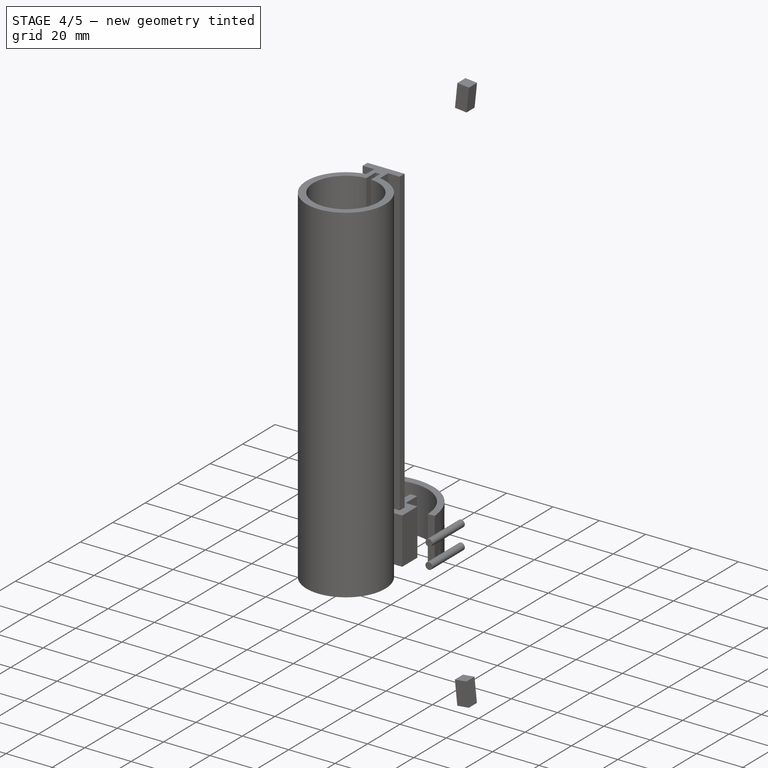
[diagram: stage 4 of 5 — iso view after this stage's code; geometry added in this stage tinted green]
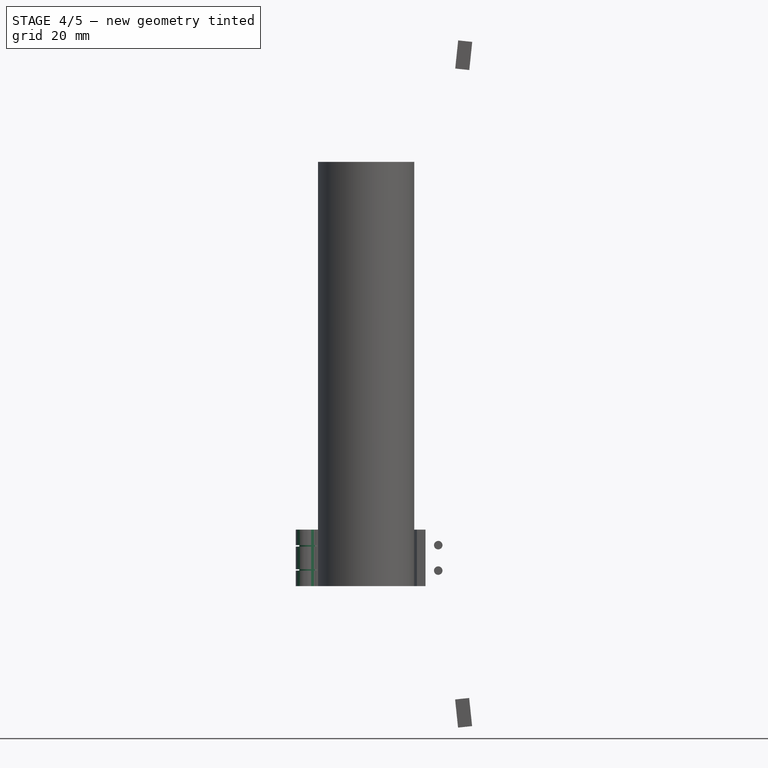
[diagram: stage 4 of 5 — front view after this stage's code; geometry added in this stage tinted green]
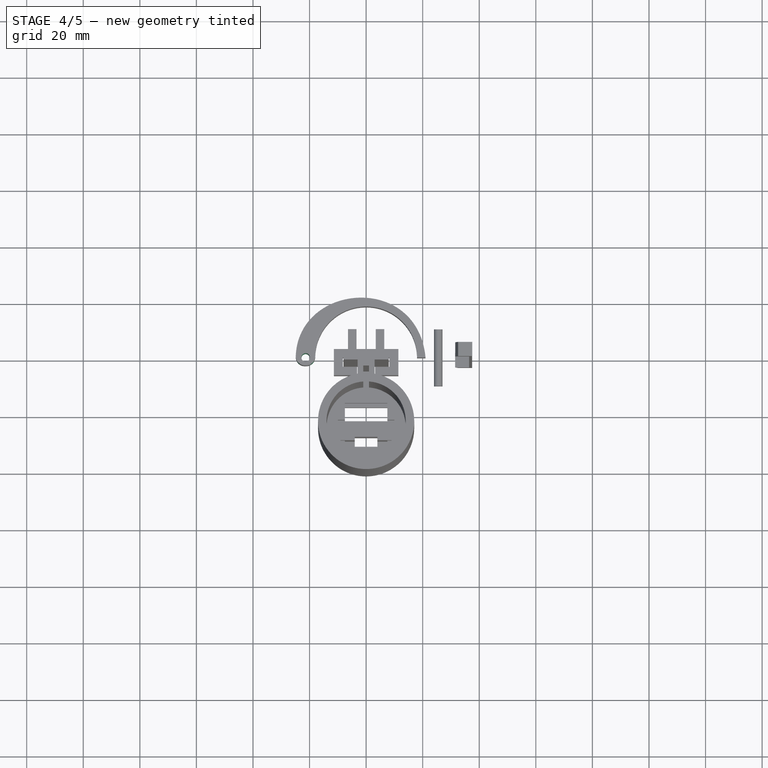
[diagram: stage 4 of 5 — top view after this stage's code; geometry added in this stage tinted green]
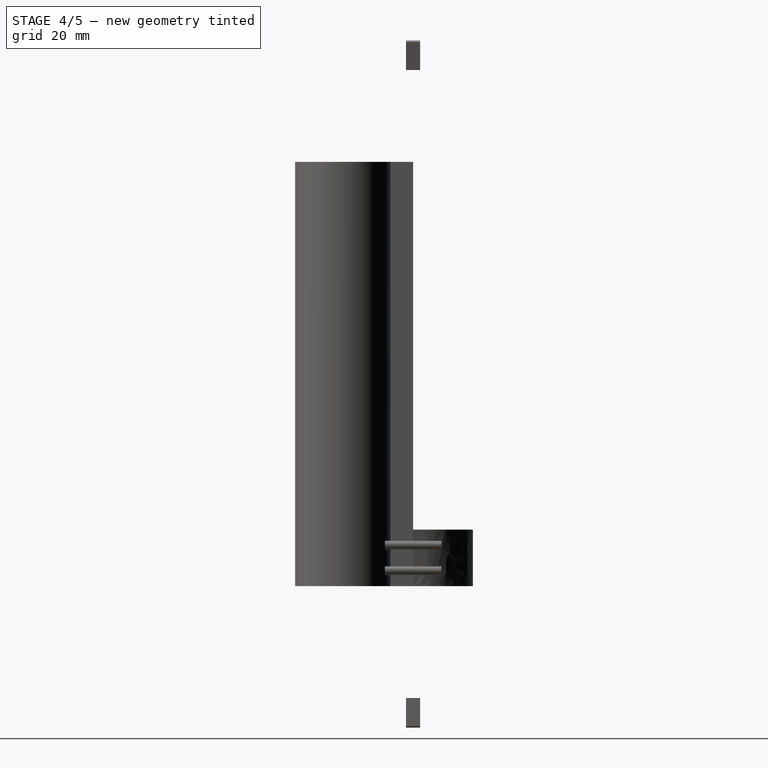
[diagram: stage 4 of 5 — right view after this stage's code; geometry added in this stage tinted green]
FEATURE [Sketcher::SketchObject] Sketch005
  ExternalGeometry = -> [Pad]
  MapMode = 5
  Placement = pos=(0,0,20) rot=(0,0,1;0rad)
  Support = -> [Pad]
  sketch-geometry (1):
    g0: Circle CenterX=-21.3809 CenterY=0 CenterZ=0 NormalX=0 NormalY=0 NormalZ=1 AngleXU=0 Radius=1.5
  constraints (4):
    c: Radius(g0) = 1.5
    c: PointOnObject(g0,g-1)
    c: DistanceX(g-3,g-3) = 7
    c: DistanceX(g0,g-3) = 3.6
FEATURE [Sketcher::SketchObject] Sketch006
  MapMode = 5
  Support = -> [XY_Plane003]
  sketch-geometry (10):
    g0: LineSegment StartX=18 StartY=0 StartZ=0 EndX=21 EndY=0 EndZ=0
    g1: ArcOfCircle CenterX=0 CenterY=0 CenterZ=0 NormalX=0 NormalY=0 NormalZ=1 AngleXU=0 Radius=18 StartAngle=0 EndAngle=3.29778
    g2-g5: Circle [constr] x4 (B-spline internal-alignment scaffolding for g6; pole/knot coordinates omitted)
    g6: BSplineCurve PolesCount=4 KnotsCount=2 Degree=3 IsPeriodic=0
    g7: GeomPoint [constr] X=21 Y=0 Z=0
    g8: GeomPoint [constr] X=-24.7809 Y=-2.8 Z=0
    g9: LineSegment StartX=-24.7809 StartY=-2.8 StartZ=0 EndX=-17.7809 EndY=-2.8 EndZ=0
  constraints (18):
    c: Horizontal(g0)
    c: Coincident(g1,g-1)
    c: Coincident(g1,g0)
    c: Radius(g1) = 18
    c: Radius(g2) = 3
    c: Equal(g2,g3)
    c: Equal(g2,g4)
    c: Equal(g2,g5)
    c: InternalAlignment(g2-g5 -> g6) x4
    c: InternalAlignment(g7,g6)
    c: InternalAlignment(g8,g6)
    c: PointOnObject(g0,g-1)
    c: Coincident(g0,g2)
    c: DistanceY(g1,g-1) = 2.8
    c: DistanceX(g5,g1) = 7
    c: Coincident(g9,g1)
    c: Horizontal(g9)
    c: Coincident(g5,g9)
FEATURE [PartDesign::Pad] Pad003
  Length = 20
  Length2 = 100
  Profile = -> Sketch006
  Type = 0
FEATURE [PartDesign::Pocket] Pocket
  BaseFeature = -> Pad
  Length = 5
  Length2 = 100
  Profile = -> Sketch005
  Type = 1
FEATURE [Sketcher::SketchObject] Sketch008
  MapMode = 5
  Placement = pos=(0,-2.8,0) rot=(1,0,0;1.5708rad)
  Support = -> [Pocket]
  sketch-geometry (4):
    g0: LineSegment StartX=-31.3912 StartY=14.5 StartZ=0 EndX=-11.9686 EndY=14.5 EndZ=0
    g1: LineSegment StartX=-11.9686 StartY=14.5 StartZ=0 EndX=-11.9686 EndY=5.5 EndZ=0
    g2: LineSegment StartX=-11.9686 StartY=5.5 StartZ=0 EndX=-31.3912 EndY=5.5 EndZ=0
    g3: LineSegment StartX=-31.3912 StartY=5.5 StartZ=0 EndX=-31.3912 EndY=14.5 EndZ=0
  constraints (10):
    c: Coincident(g0,g1)
    c: Coincident(g1,g2)
    c: Coincident(g2,g3)
    c: Coincident(g3,g0)
    c: Horizontal(g0)
    c: Horizontal(g2)
    c: Vertical(g1)
    c: Vertical(g3)
    c: DistanceY(g-1,g2) = 5.5
    c: DistanceY(g3,g3) = 9
FEATURE [PartDesign::Pocket] Pocket002
  BaseFeature = -> Pocket
  Length = 6
  Length2 = 100
  Profile = -> Sketch008
  Type = 0
FEATURE [Sketcher::SketchObject] Sketch009
  ExternalGeometry = -> [Pad003]
  MapMode = 5
  Placement = pos=(0,0,0) rot=(1,0,0;3.14159rad)
  Support = -> [Pad003]
  sketch-geometry (4):
    g0: LineSegment StartX=-27.7578 StartY=2.8 StartZ=0 EndX=-12.357 EndY=2.8 EndZ=0
    g1: LineSegment StartX=-12.357 StartY=2.8 StartZ=0 EndX=-12.357 EndY=-3.2 EndZ=0
    g2: LineSegment StartX=-12.357 StartY=-3.2 StartZ=0 EndX=-27.7578 EndY=-3.2 EndZ=0
    g3: LineSegment StartX=-27.7578 StartY=-3.2 StartZ=0 EndX=-27.7578 EndY=2.8 EndZ=0
  constraints (10):
    c: Coincident(g0,g1)
    c: Coincident(g1,g2)
    c: Coincident(g2,g3)
    c: Coincident(g3,g0)
    c: Horizontal(g0)
    c: Horizontal(g2)
    c: Vertical(g1)
    c: Vertical(g3)
    c: DistanceY(g3,g3) = 6
    c: PointOnObject(g-3,g0)
FEATURE [PartDesign::Pocket] Pocket003
  BaseFeature = -> Pad003
  Length = 6
  Length2 = 100
  Profile = -> Sketch009
  Type = 0
FEATURE [PartDesign::LinearPattern] LinearPattern002
  BaseFeature = -> Pocket003
  Direction = -> Z_Axis003
  Length = 14
  Occurrences = 2
  Originals = -> [Pocket003]
FEATURE [Sketcher::SketchObject] Sketch010
  ExternalGeometry = -> [LinearPattern002]
  MapMode = 5
  Placement = pos=(0,0,6) rot=(1,0,0;3.14159rad)
  Support = -> [LinearPattern002]
  sketch-geometry (1):
    g0: Circle CenterX=-21.3809 CenterY=0 CenterZ=0 NormalX=0 NormalY=0 NormalZ=1 AngleXU=0 Radius=1.5
  constraints (4):
    c: DistanceX(g-3,g-3) = 7
    c: Radius(g0) = 1.5
    c: PointOnObject(g0,g-1)
    c: DistanceX(g0,g-3) = 3.6
FEATURE [PartDesign::Pocket] Pocket004
  BaseFeature = -> LinearPattern002
  Length = 5
  Length2 = 100
  Profile = -> Sketch010
  Type = 1
FEATURE [PartDesign::Fillet] Fillet001
  Base = -> Pocket004 [Edge15,Edge17,Edge10,Edge8,Edge13,Edge6]
  BaseFeature = -> Pocket004
  Radius = 3.2
FEATURE [PartDesign::Body] Body003  label="车梁卡扣2_1"
  Group = -> [Sketch006,Pad003,Sketch009,Pocket003,LinearPattern002,Sketch010,Pocket004,Fillet001]
  Origin = -> Origin003
  Placement = pos=(0,0,20) rot=(1,0,0;3.14159rad)
FEATURE [PartDesign::Fillet] Fillet002
  Base = -> Pocket002 [Edge8,Edge15,Edge13,Edge6,Edge10,Edge17]
  BaseFeature = -> Pocket002
  Radius = 3.2
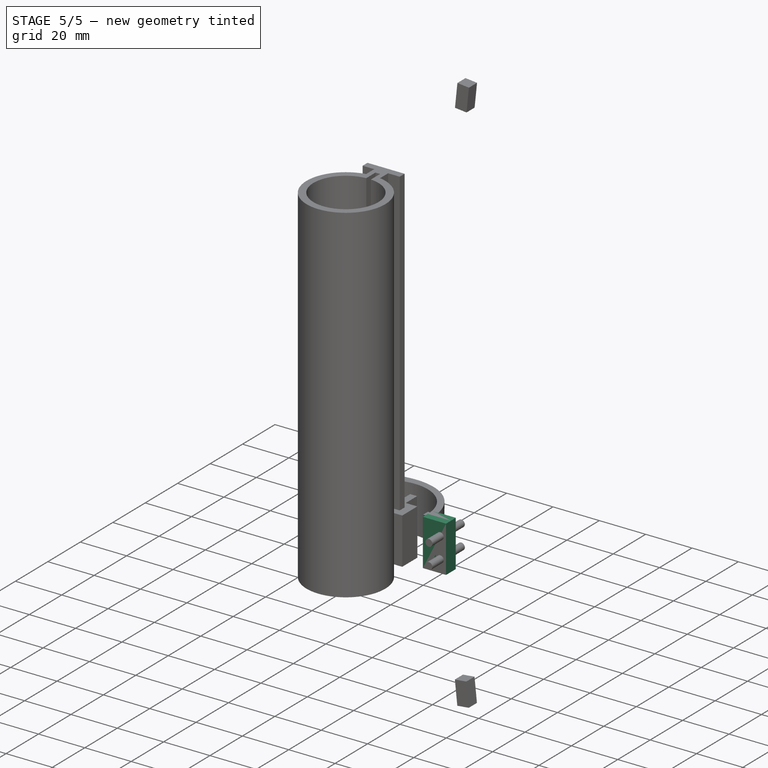
[diagram: stage 5 of 5 — iso view after this stage's code; geometry added in this stage tinted green]
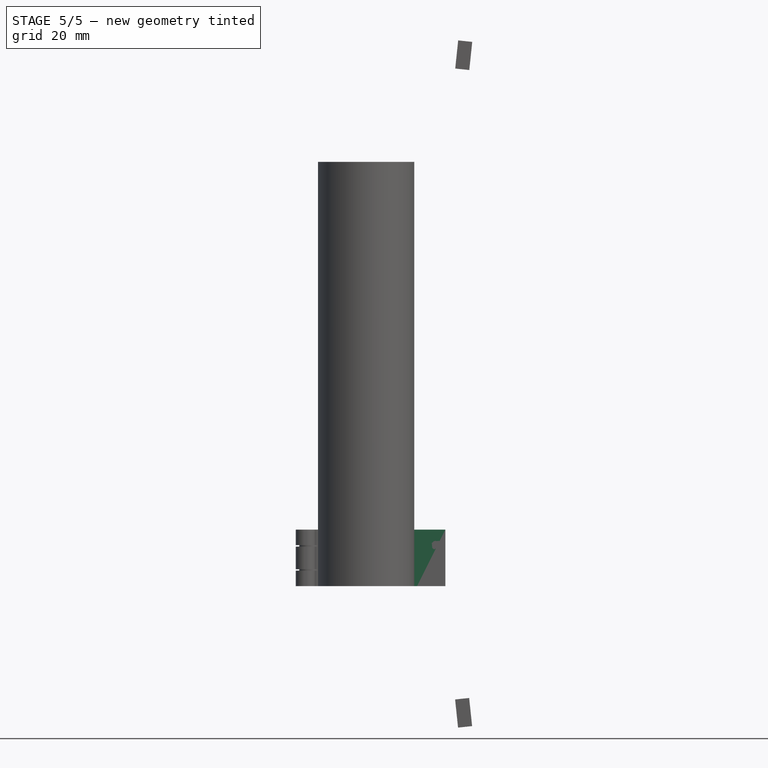
[diagram: stage 5 of 5 — front view after this stage's code; geometry added in this stage tinted green]
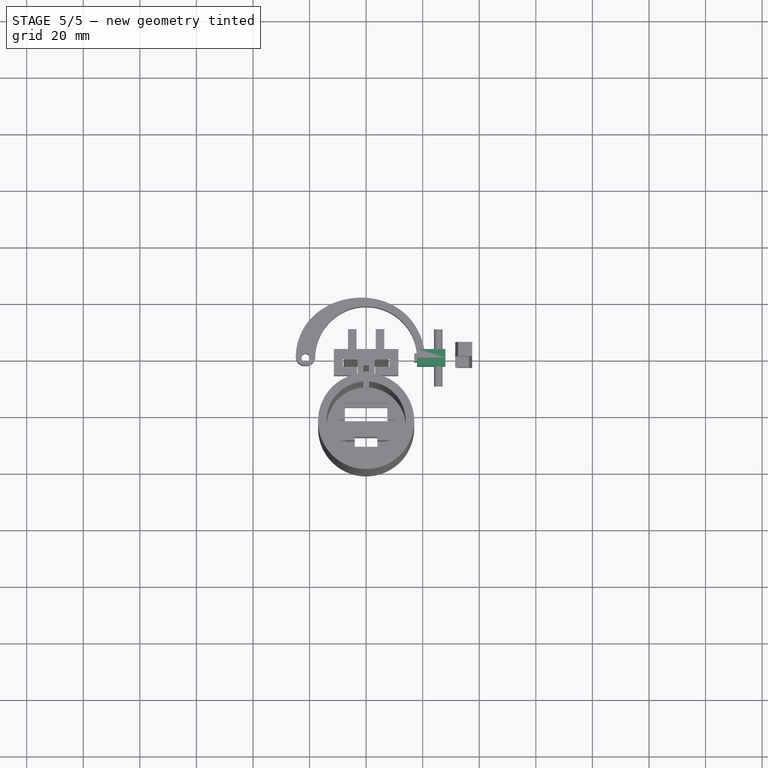
[diagram: stage 5 of 5 — top view after this stage's code; geometry added in this stage tinted green]
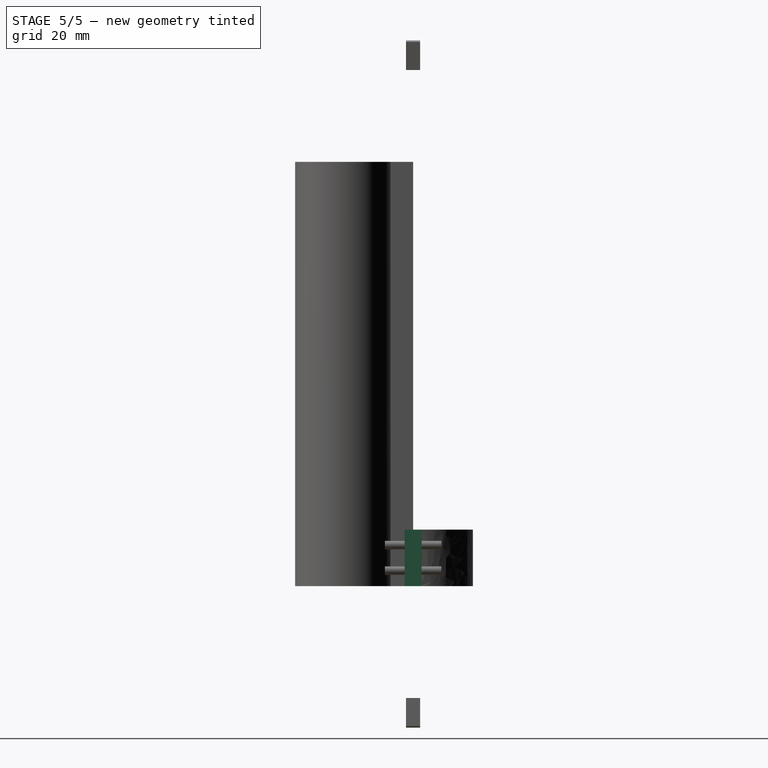
[diagram: stage 5 of 5 — right view after this stage's code; geometry added in this stage tinted green]
FEATURE [Part::Box] Box  label="固定板1_2"
  AttacherType = Attacher::AttachEngine3D
  Height = 20
  Length = 10
  Placement = pos=(18,0,0) rot=(0,0,1;0rad)
  Width = 3
FEATURE [Part::Cylinder] Cylinder  label="螺孔1_3"
  Angle = 360
  AttacherType = Attacher::AttachEngine3D
  Height = 3
  Placement = pos=(24.5,3,5.5) rot=(1,0,0;1.5708rad)
  Radius = 1.5
FEATURE [Part::Cylinder] Cylinder001  label="螺孔1_4"
  Angle = 360
  AttacherType = Attacher::AttachEngine3D
  Height = 3
  Placement = pos=(24.5,3,14.5) rot=(1,0,0;1.5708rad)
  Radius = 1.5
FEATURE [Part::Box] Box002  label="掏空1_5"
  AttacherType = Attacher::AttachEngine3D
  Height = 20
  Length = 6
  Placement = pos=(17,0,0) rot=(0,0,1;0rad)
  Width = 1.5
FEATURE [Part::Cylinder] Cylinder002  label="螺孔2_3"
  Angle = 360
  AttacherType = Attacher::AttachEngine3D
  Height = 3
  Placement = pos=(24.5,0,14.5) rot=(1,0,0;1.5708rad)
  Radius = 1.5
FEATURE [Part::Box] Box003  label="固定板2_2"
  AttacherType = Attacher::AttachEngine3D
  Height = 20
  Length = 10
  Placement = pos=(18,-3,0) rot=(0,0,1;0rad)
  Width = 3
FEATURE [Part::Cylinder] Cylinder003  label="螺孔2_4"
  Angle = 360
  AttacherType = Attacher::AttachEngine3D
  Height = 3
  Placement = pos=(24.5,0,5.5) rot=(1,0,0;1.5708rad)
  Radius = 1.5
FEATURE [Part::Box] Box004  label="掏空2_5"
  AttacherType = Attacher::AttachEngine3D
  Height = 20
  Length = 6
  Placement = pos=(17,-1.5,0) rot=(0,0,1;0rad)
  Width = 1.5
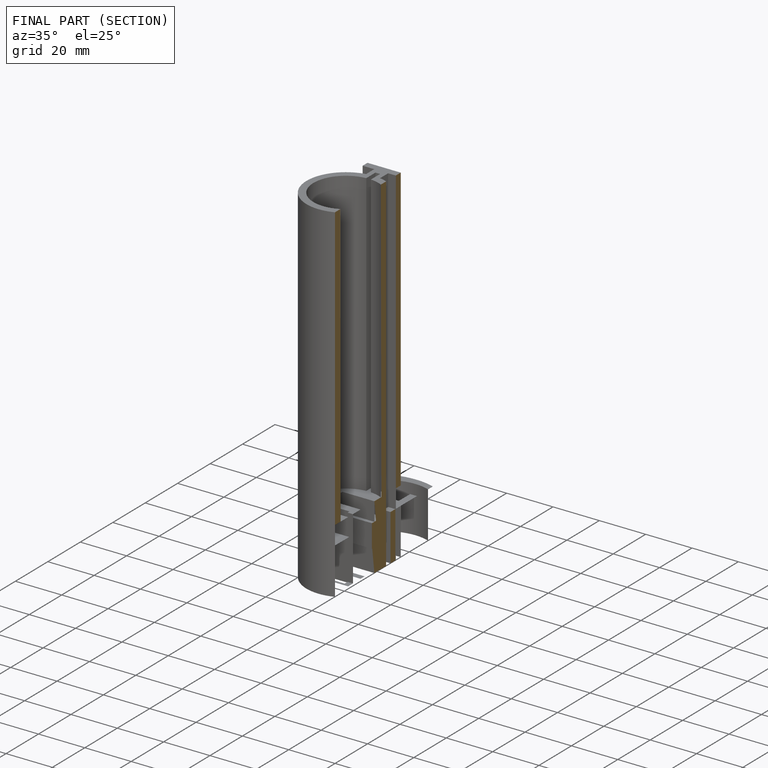
[diagram: finished part — half-section view (interior)]
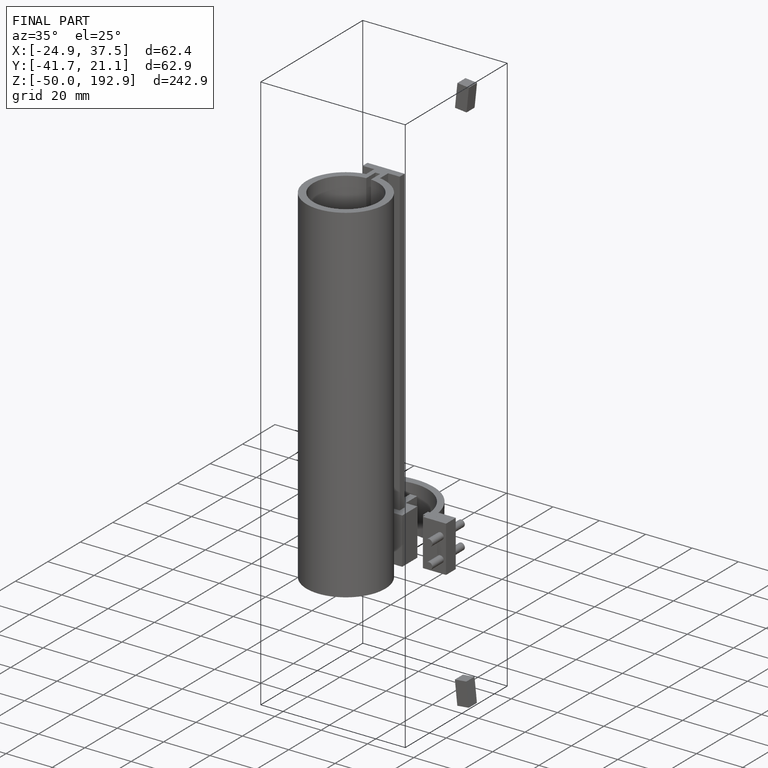
[diagram: finished part — iso view with bounding-box wireframe]
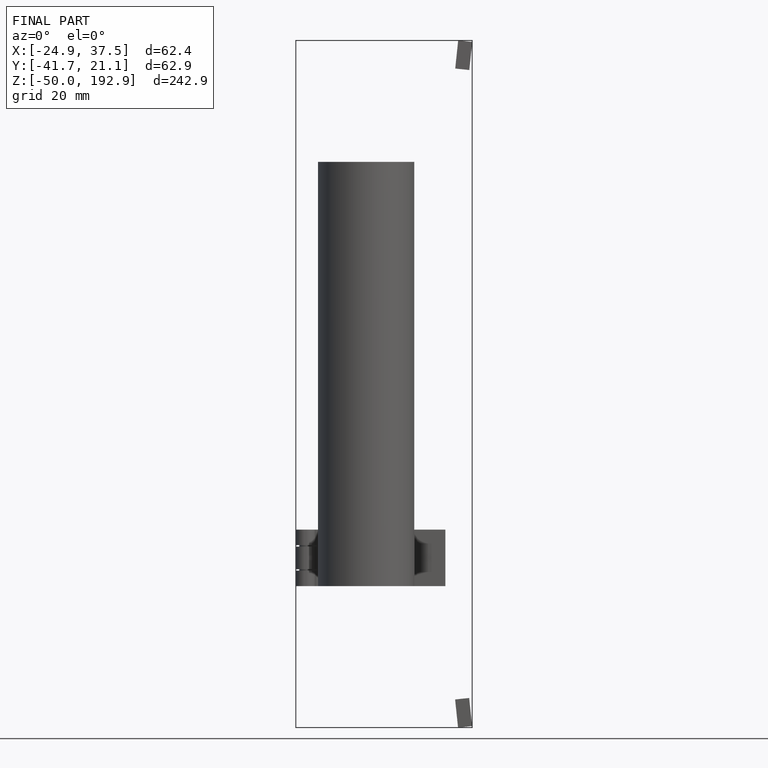
[diagram: finished part — front view with bounding-box wireframe]
